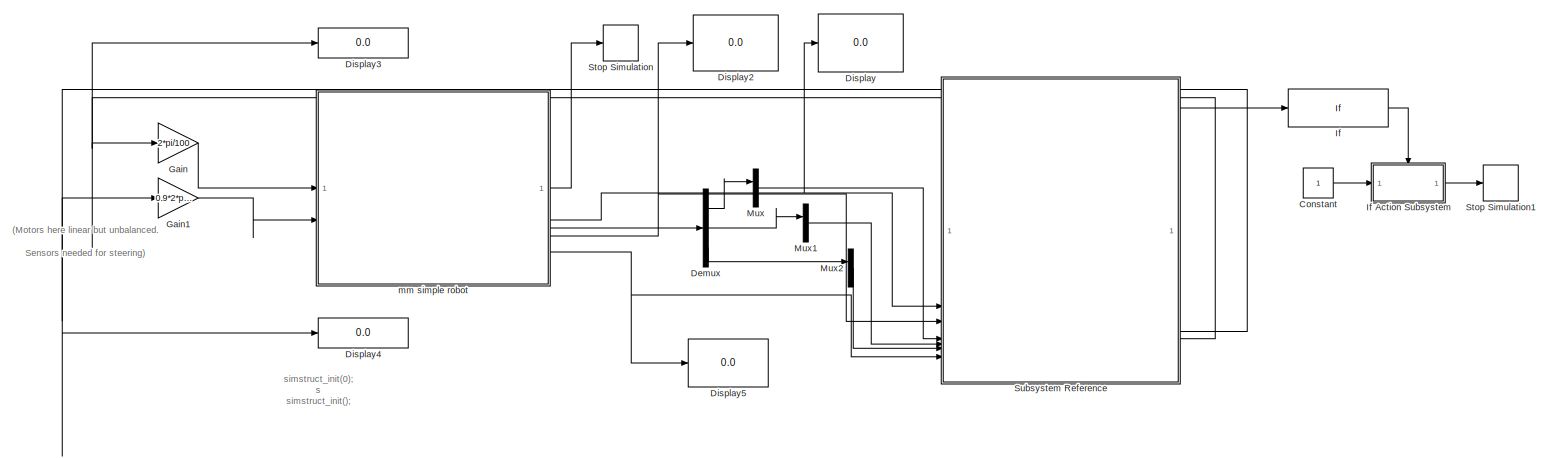
[diagram: root canvas - part 1/1, most of the canvas]
MODEL slx_4907751198f1
KIND model
CONFIG AbsTol = auto
CONFIG EnableMultiTasking = off
CONFIG FixedStep = 0.005
CONFIG MaxStep = auto
CONFIG MinStep = auto
CONFIG RelTol = 1e-3
CONFIG SampleTimeConstraint = Unconstrained
CONFIG SolverName = FixedStepAuto
CONFIG StartTime = 0.0
CONFIG StopTime = 10
BLOCK [Constant] Constant
BLOCK [Demux] Demux
  Outputs = 3
BLOCK [Display] Display
  Decimation = 1
BLOCK [Display] Display2
  Decimation = 1
BLOCK [Display] Display3
  Decimation = 1
BLOCK [Display] Display4
  Decimation = 1
BLOCK [Display] Display5
  Decimation = 1
BLOCK [Gain] Gain
  Gain = 2*pi/100
BLOCK [Gain] Gain1
  Gain = 0.9*2*pi/100
BLOCK [If] If
  IfExpression = u1 == 1
  ShowElse = off
  ZeroCross = off
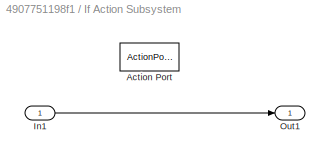
BLOCK [SubSystem] If Action Subsystem
  TreatAsAtomicUnit = on
BLOCK [ActionPort] If Action Subsystem/Action Port
  ActionPortLabel = if(u1 == 1)
BLOCK [Inport] If Action Subsystem/In1
BLOCK [Outport] If Action Subsystem/Out1
BLOCK [Mux] Mux
  DisplayOption = bar
BLOCK [Mux] Mux1
  DisplayOption = bar
BLOCK [Mux] Mux2
  DisplayOption = bar
BLOCK [Stop] Stop Simulation
BLOCK [Stop] Stop Simulation1
BLOCK [SubSystem] Subsystem Reference
  ReferencedSubsystem = StudentTemplate_M2
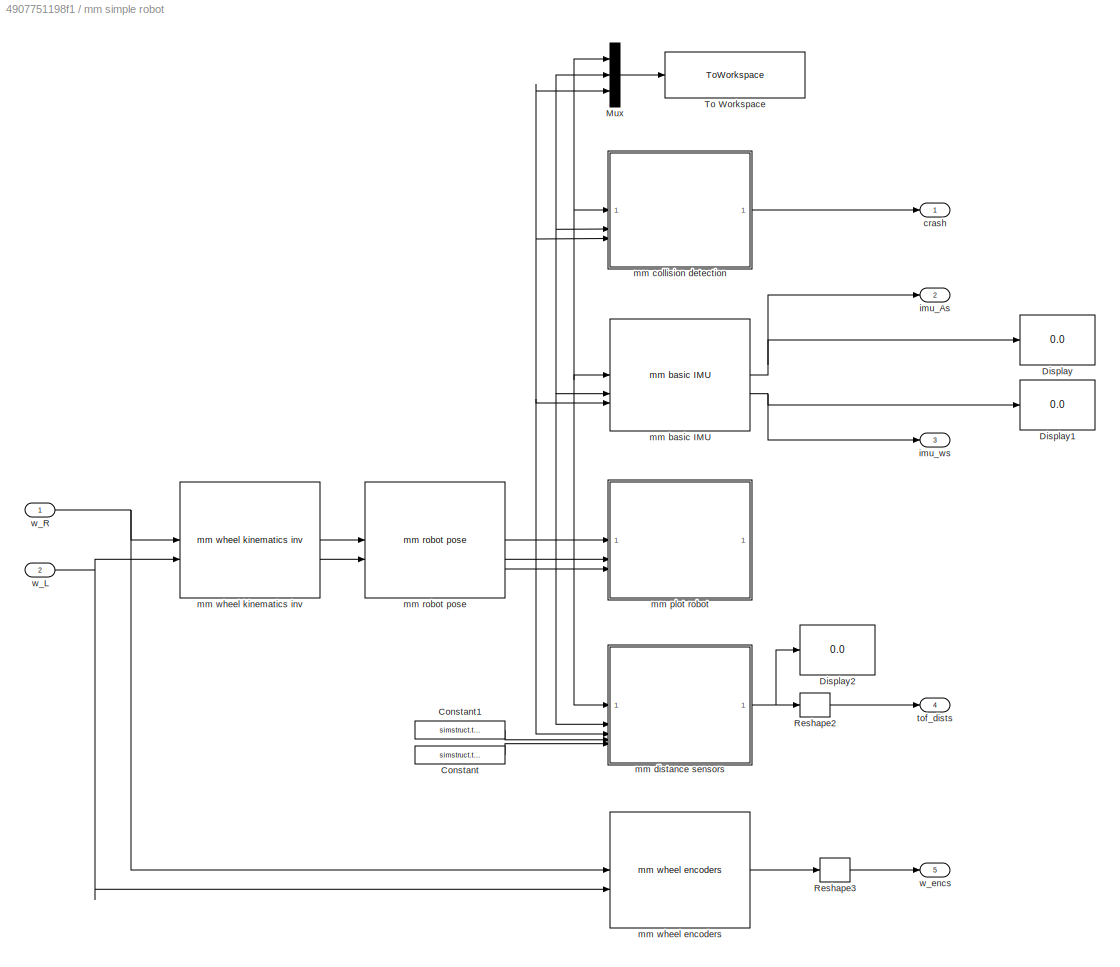
BLOCK [SubSystem] mm simple robot
  AncestorBlock = mmuct_lib/mm simple robot
BLOCK [Constant] mm simple robot/Constant
  Value = simstruct.tofspts
BLOCK [Constant] mm simple robot/Constant1
  Value = simstruct.tofposes
BLOCK [Display] mm simple robot/Display
  Decimation = 1
BLOCK [Display] mm simple robot/Display1
  Decimation = 1
BLOCK [Display] mm simple robot/Display2
  Decimation = 1
BLOCK [Mux] mm simple robot/Mux
  DisplayOption = bar
  Inputs = 3
BLOCK [Reshape] mm simple robot/Reshape2
BLOCK [Reshape] mm simple robot/Reshape3
BLOCK [ToWorkspace] mm simple robot/To Workspace
  FixptAsFi = on
  MaxDataPoints = inf
  SampleTime = -1
  SaveFormat = Timeseries
  VariableName = trajectory
BLOCK [Outport] mm simple robot/crash
BLOCK [Outport] mm simple robot/imu_As
  Port = 2
BLOCK [Outport] mm simple robot/imu_ws
  Port = 3
BLOCK [Reference] mm simple robot/mm basic IMU  REF=mmuct_lib/mm basic IMU  (lib defined in slx_2620ace7ce61, slx_448e9b5fb939)
  SourceBlock = mmuct_lib/mm basic IMU
  SourceProductName = UCT EEE Micromouse
  SourceType = SubSystem
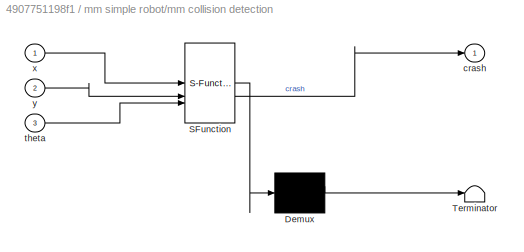
BLOCK [SubSystem] mm simple robot/mm collision detection
  ErrorFcn = Stateflow.Translate.translate
  InitFcn = struct2bus(simstruct,'ssbus');
  PermitHierarchicalResolution = ExplicitOnly
  SFBlockType = MATLAB Function
  TreatAsAtomicUnit = on
BLOCK [Demux] mm simple robot/mm collision detection/ Demux 
  Outputs = 1
BLOCK [S-Function] mm simple robot/mm collision detection/ SFunction 
  EnableBusSupport = off
  FunctionName = sf_sfun
  Parameters = simstruct
  PortCounts = [3 2]
  SFcnIsStateOwnerBlock = off
  SFunctionDeploymentMode = off
  Tag = Stateflow S-Function 7
BLOCK [Terminator] mm simple robot/mm collision detection/ Terminator 
BLOCK [Outport] mm simple robot/mm collision detection/crash
BLOCK [Inport] mm simple robot/mm collision detection/theta
  Port = 3
BLOCK [Inport] mm simple robot/mm collision detection/x
BLOCK [Inport] mm simple robot/mm collision detection/y
  Port = 2
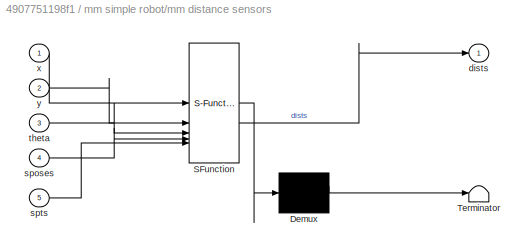
BLOCK [SubSystem] mm simple robot/mm distance sensors
  ErrorFcn = Stateflow.Translate.translate
  InitFcn = struct2bus(simstruct,'ssbus');
  PermitHierarchicalResolution = ExplicitOnly
  SFBlockType = MATLAB Function
  TreatAsAtomicUnit = on
BLOCK [Demux] mm simple robot/mm distance sensors/ Demux 
  Outputs = 1
BLOCK [S-Function] mm simple robot/mm distance sensors/ SFunction 
  EnableBusSupport = off
  FunctionName = sf_sfun
  Parameters = debug,simstruct
  PortCounts = [5 2]
  SFcnIsStateOwnerBlock = off
  SFunctionDeploymentMode = off
  Tag = Stateflow S-Function 11
BLOCK [Terminator] mm simple robot/mm distance sensors/ Terminator 
BLOCK [Outport] mm simple robot/mm distance sensors/dists
BLOCK [Inport] mm simple robot/mm distance sensors/sposes
  Port = 4
BLOCK [Inport] mm simple robot/mm distance sensors/spts
  Port = 5
BLOCK [Inport] mm simple robot/mm distance sensors/theta
  Port = 3
BLOCK [Inport] mm simple robot/mm distance sensors/x
BLOCK [Inport] mm simple robot/mm distance sensors/y
  Port = 2
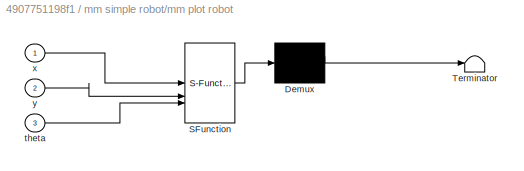
BLOCK [SubSystem] mm simple robot/mm plot robot
  ErrorFcn = Stateflow.Translate.translate
  InitFcn = simstruct_var = get_param(gcb,'simstruct'); \nexistsinbase = evalin('base', ['exist(''' simstruct_var ''',''var'')']); \n\nss = [];\nif existsinbase \n  %disp(['initFcn: loading simulation structure ' simstruct_var]); \n  ss = evalin('base',simstruct_var); \nend\nstruct2bus(ss,'ssbus');  % generate bus definition
  PermitHierarchicalResolution = ExplicitOnly
  SFBlockType = MATLAB Function
  TreatAsAtomicUnit = on
BLOCK [Demux] mm simple robot/mm plot robot/ Demux 
  Outputs = 1
BLOCK [S-Function] mm simple robot/mm plot robot/ SFunction 
  EnableBusSupport = off
  FunctionName = sf_sfun
  Parameters = simstruct
  PortCounts = [3 1]
  SFcnIsStateOwnerBlock = off
  SFunctionDeploymentMode = off
  Tag = Stateflow S-Function 12
BLOCK [Terminator] mm simple robot/mm plot robot/ Terminator 
BLOCK [Inport] mm simple robot/mm plot robot/theta
  Port = 3
BLOCK [Inport] mm simple robot/mm plot robot/x
BLOCK [Inport] mm simple robot/mm plot robot/y
  Port = 2
BLOCK [Reference] mm simple robot/mm robot pose  REF=dhaouadi2013_lib/mm robot pose  (lib defined in slx_0665a0507d13)
  SourceBlock = dhaouadi2013_lib/mm robot pose
BLOCK [Reference] mm simple robot/mm wheel encoders  REF=mmuct_lib/mm wheel encoders  (lib defined in slx_2620ace7ce61, slx_448e9b5fb939)
  SourceBlock = mmuct_lib/mm wheel encoders
BLOCK [Reference] mm simple robot/mm wheel kinematics inv  REF=dhaouadi2013_lib/mm wheel kinematics inv  (lib defined in slx_0665a0507d13)
  SourceBlock = dhaouadi2013_lib/mm wheel kinematics inv
BLOCK [Outport] mm simple robot/tof_dists
  Port = 4
BLOCK [Inport] mm simple robot/w_L
  Port = 2
BLOCK [Inport] mm simple robot/w_R
BLOCK [Outport] mm simple robot/w_encs
  Port = 5
ANNOTATION (root): (Motors here linear but unbalanced. Sensors needed for steering)
ANNOTATION (root): simstruct_init(0); s simstruct_init();
LINE Constant:1 -> If Action Subsystem:1
LINE Demux:1 -> Mux:1
LINE Demux:2 -> Mux1:1
LINE Demux:3 -> Mux2:1
LINE Gain1:1 -> mm simple robot:2
LINE Gain:1 -> mm simple robot:1
LINE If Action Subsystem/In1:1 -> If Action Subsystem/Out1:1
LINE If Action Subsystem:1 -> Stop Simulation1:1
LINE If:1 -> If Action Subsystem:ifaction
LINE Mux1:1 -> Subsystem Reference:7
LINE Mux2:1 -> Subsystem Reference:8
LINE Mux:1 -> Subsystem Reference:6
LINE Subsystem Reference:1 -> If:1
NET Subsystem Reference:5 -> Display4:1, Gain1:1
NET Subsystem Reference:6 -> Display3:1, Gain:1
LINE mm simple robot:1 -> Stop Simulation:1
NET mm simple robot:2 -> Display:1, Subsystem Reference:3
NET mm simple robot:3 -> Display2:1, Subsystem Reference:4
LINE mm simple robot:4 -> Demux:1
NET mm simple robot:5 -> Display5:1, Subsystem Reference:11
note: NET lines group one-source signal fan-out (src -> all destinations, sorted); 1:1 wires keep LINE
CHART mm simple robot/mm collision detection states=1 transitions=1
  STATE_LABEL 'eML_blk_kernel()'
  STATE_LABEL "SCRIPT:\nfunction crash = collisiondetect(x,y,theta,simstruct)\ncoder.extrinsic('imread', 'image', 'set', 'drawnow', 'evalin', 'plot');\n\nmapdt = simstruct.mapdt;\nmapres = simstruct.mapres;\nrobot_rad = simstruct.robot_rad;\n\ncrash = 0;\n\n% Always crashed if out of map\nxi = x*mapres + 1;  yi = round(y*mapres) + 1;  % world to image\nif yi<1 || yi>size(mapdt,1) || xi<1 || xi>size(mapdt,2)\n  crash = 1;\n  r...<+117ch>"
CHART mm simple robot/mm distance sensors states=1 transitions=1
  STATE_LABEL 'eML_blk_kernel()'
  STATE_LABEL 'SCRIPT:\nfunction dists = distsensors(x,y,theta,sposes,spts,simstruct,debug)\n%DISTSENS  Simulate output of time-of-flight distance sensor\n%   dists = distsens(x,y,theta,sposes,spts,simstruct,debug) takes a\n%   robot pose in the world (x, y, theta), a sensor pose in the robot frame\n%   (spos), and a set of sensor points to be checked in the sensor frame,\n%   and finds the distance from the sensor to...<+3608ch>'
CHART mm simple robot/mm plot robot states=1 transitions=1
  STATE_LABEL 'eML_blk_kernel()'
  STATE_LABEL "SCRIPT:\nfunction plotrobot(x,y,theta,simstruct)\ncoder.extrinsic('imread', 'image', 'set', 'drawnow', 'evalin', 'plot', 'keyboard');\n%persistent plotHandle robot_img robot_imgalpha robot_imgres robot_imgxyd;\n\nfh = evalin('base','UCTMMRobotSimulatorHandle');\nih = get(fh,'UserData');\n\nif isfield(simstruct,'robot_img') && isfield(simstruct,'robot_imgalpha') && isfield(simstruct,'robot_imgxyd')\n  robot...<+967ch>"
CHART  states=0 transitions=0
CHART  states=0 transitions=0
CHART  states=0 transitions=0
